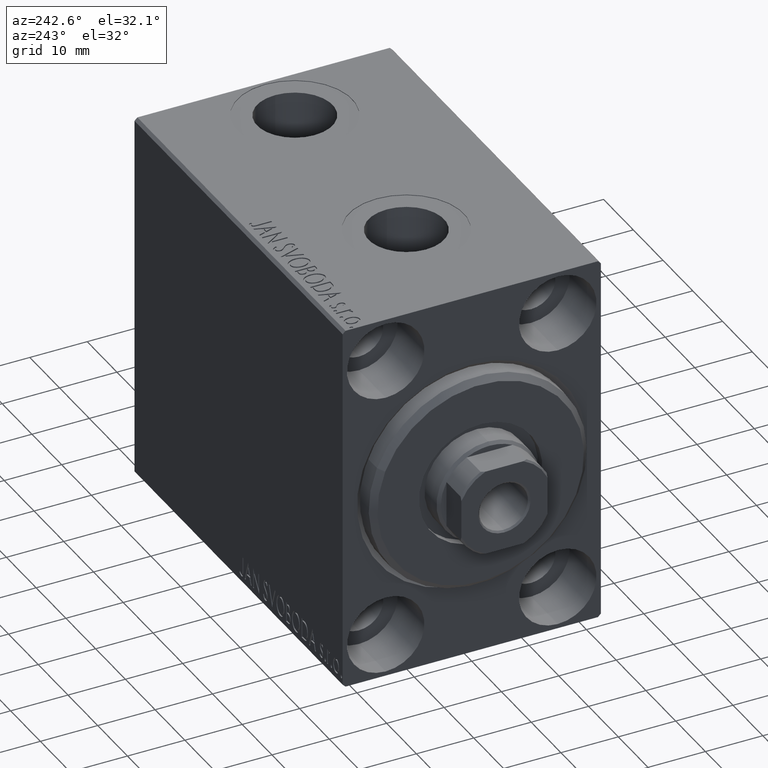
[diagram: clean part render]
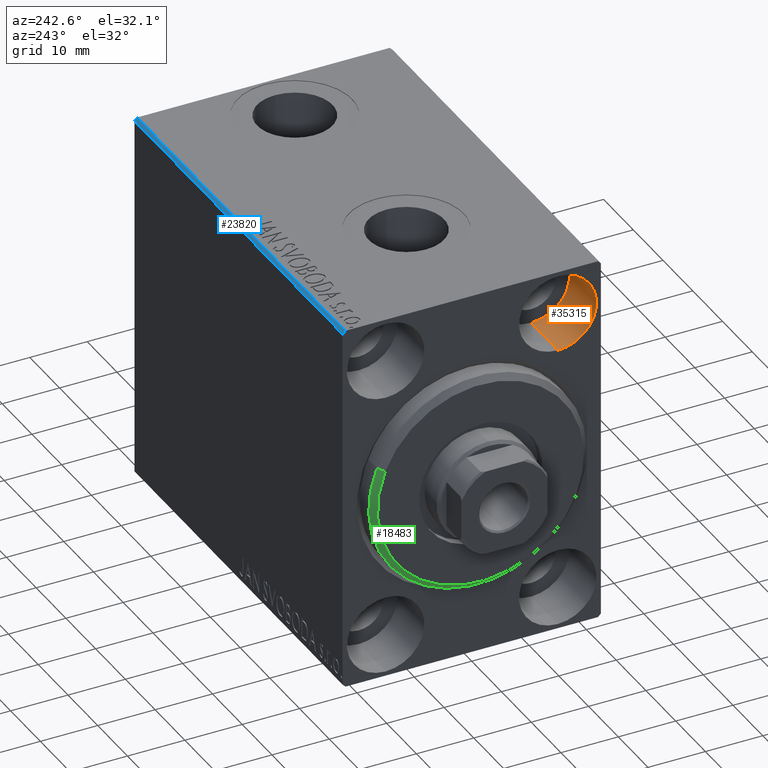
[diagram: same view with three faces highlighted in distinct colors, each labeled with its STEP entity id]
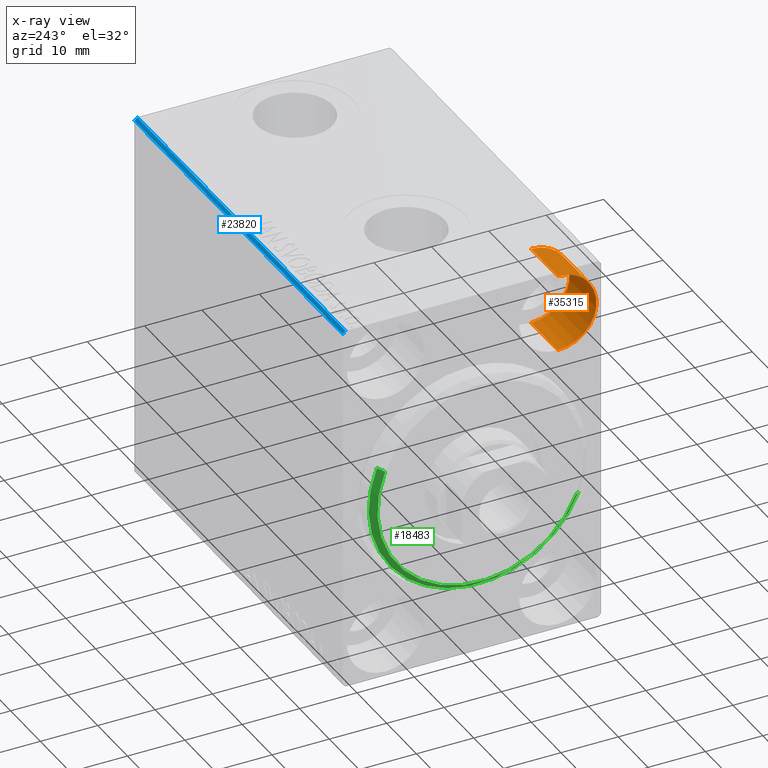
[diagram: x-ray of the same camera — body ghosted, the three highlighted faces saturated]
A machine part, auxiliary view with three faces highlighted in distinct colors.
The next image is the same camera in x-ray (body ghosted, the three faces saturated) — at least one of them is partly hidden behind the body in this view.
Their STEP definitions:

[orange] entity #35315 — the highlighted cylindrical surface (partial cylindrical patch) has radius 6.75 mm, axis along (-1, -0, -0).
#65 = DIRECTION ( 'NONE',  ( -1.000000000000000000, -0.000000000000000000, -0.000000000000000000 ) ) ;
#1546 = AXIS2_PLACEMENT_3D ( 'NONE', #15306, #43311, #36005 ) ;
#4296 = CARTESIAN_POINT ( 'NONE',  ( 0.000000000000000000, -14.99999999999999645, 31.75000000000000000 ) ) ;
#4819 = CARTESIAN_POINT ( 'NONE',  ( 9.000000000000000000, -14.99999999999999645, 31.75000000000000000 ) ) ;
#5035 = LINE ( 'NONE', #4819, #17606 ) ;
#6517 = LINE ( 'NONE', #10292, #23451 ) ;
#6533 = ORIENTED_EDGE ( 'NONE', *, *, #18035, .T. ) ;
#8702 = CARTESIAN_POINT ( 'NONE',  ( 0.000000000000000000, -14.99999999999999645, 18.25000000000000355 ) ) ;
#8822 = ORIENTED_EDGE ( 'NONE', *, *, #27505, .T. ) ;
#9036 = CIRCLE ( 'NONE', #31774, 6.749999999999999112 ) ;
#9455 = CARTESIAN_POINT ( 'NONE',  ( 9.000000000000000000, -14.99999999999999645, 31.75000000000000000 ) ) ;
#9811 = CARTESIAN_POINT ( 'NONE',  ( 9.000000000000000000, -14.99999999999999645, 25.00000000000000000 ) ) ;
#10292 = CARTESIAN_POINT ( 'NONE',  ( 9.000000000000000000, -14.99999999999999645, 18.25000000000000355 ) ) ;
#12294 = VERTEX_POINT ( 'NONE', #4296 ) ;
#15306 = CARTESIAN_POINT ( 'NONE',  ( 9.000000000000000000, -14.99999999999999645, 25.00000000000000000 ) ) ;
#16039 = VERTEX_POINT ( 'NONE', #17294 ) ;
#17257 = DIRECTION ( 'NONE',  ( 0.000000000000000000, 0.000000000000000000, 1.000000000000000000 ) ) ;
#17294 = CARTESIAN_POINT ( 'NONE',  ( 9.000000000000000000, -14.99999999999999645, 18.25000000000000355 ) ) ;
#17606 = VECTOR ( 'NONE', #28385, 1000.000000000000000 ) ;
#18035 = EDGE_CURVE ( 'NONE', #30341, #12294, #9036, .T. ) ;
#18631 = FACE_OUTER_BOUND ( 'NONE', #37357, .T. ) ;
#19606 = ORIENTED_EDGE ( 'NONE', *, *, #38079, .F. ) ;
#22503 = DIRECTION ( 'NONE',  ( 0.000000000000000000, 0.000000000000000000, 1.000000000000000000 ) ) ;
#23451 = VECTOR ( 'NONE', #65, 1000.000000000000000 ) ;
#23716 = EDGE_CURVE ( 'NONE', #33579, #12294, #5035, .T. ) ;
#25745 = CYLINDRICAL_SURFACE ( 'NONE', #1546, 6.749999999999999112 ) ;
#27505 = EDGE_CURVE ( 'NONE', #16039, #30341, #6517, .T. ) ;
#27701 = DIRECTION ( 'NONE',  ( -1.000000000000000000, 0.000000000000000000, 0.000000000000000000 ) ) ;
#28385 = DIRECTION ( 'NONE',  ( -1.000000000000000000, -0.000000000000000000, -0.000000000000000000 ) ) ;
#30341 = VERTEX_POINT ( 'NONE', #8702 ) ;
#31774 = AXIS2_PLACEMENT_3D ( 'NONE', #34181, #27701, #17257 ) ;
#33579 = VERTEX_POINT ( 'NONE', #9455 ) ;
#33596 = CIRCLE ( 'NONE', #43523, 6.749999999999999112 ) ;
#34181 = CARTESIAN_POINT ( 'NONE',  ( 0.000000000000000000, -14.99999999999999645, 25.00000000000000000 ) ) ;
#35315 = ADVANCED_FACE ( 'NONE', ( #18631 ), #25745, .F. ) ;
#36005 = DIRECTION ( 'NONE',  ( 0.000000000000000000, 0.000000000000000000, 1.000000000000000000 ) ) ;
#37357 = EDGE_LOOP ( 'NONE', ( #19606, #8822, #6533, #40126 ) ) ;
#38079 = EDGE_CURVE ( 'NONE', #16039, #33579, #33596, .T. ) ;
#39838 = DIRECTION ( 'NONE',  ( -1.000000000000000000, 0.000000000000000000, 0.000000000000000000 ) ) ;
#40126 = ORIENTED_EDGE ( 'NONE', *, *, #23716, .F. ) ;
#43311 = DIRECTION ( 'NONE',  ( -1.000000000000000000, -0.000000000000000000, -0.000000000000000000 ) ) ;
#43523 = AXIS2_PLACEMENT_3D ( 'NONE', #9811, #39838, #22503 ) ;

[blue] entity #23820 — the highlighted planar face has unit normal (-0, -0.7071, -0.7071).
#524 = ORIENTED_EDGE ( 'NONE', *, *, #33081, .F. ) ;
#1028 = VERTEX_POINT ( 'NONE', #5926 ) ;
#1396 = LINE ( 'NONE', #42103, #24364 ) ;
#2178 = LINE ( 'NONE', #32440, #22839 ) ;
#4699 = CARTESIAN_POINT ( 'NONE',  ( 0.000000000000000000, 22.49999999999999289, 31.99999999999999289 ) ) ;
#4958 = ORIENTED_EDGE ( 'NONE', *, *, #39203, .F. ) ;
#5789 = EDGE_CURVE ( 'NONE', #7722, #1028, #7553, .T. ) ;
#5926 = CARTESIAN_POINT ( 'NONE',  ( 0.000000000000000000, 21.99999999999999289, 32.50000000000000000 ) ) ;
#7553 = LINE ( 'NONE', #21122, #8750 ) ;
#7722 = VERTEX_POINT ( 'NONE', #13992 ) ;
#8750 = VECTOR ( 'NONE', #34711, 1000.000000000000000 ) ;
#9458 = PLANE ( 'NONE',  #21855 ) ;
#12801 = CARTESIAN_POINT ( 'NONE',  ( 70.00000000000000000, 21.99999999999999289, 32.50000000000000000 ) ) ;
#12877 = VECTOR ( 'NONE', #41167, 999.9999999999998863 ) ;
#12884 = ORIENTED_EDGE ( 'NONE', *, *, #35325, .F. ) ;
#13158 = LINE ( 'NONE', #26721, #12877 ) ;
#13992 = CARTESIAN_POINT ( 'NONE',  ( 70.00000000000000000, 21.99999999999999289, 32.50000000000000000 ) ) ;
#16175 = DIRECTION ( 'NONE',  ( 1.000000000000000000, 0.000000000000000000, 0.000000000000000000 ) ) ;
#17520 = EDGE_LOOP ( 'NONE', ( #524, #12884, #4958, #22527 ) ) ;
#21122 = CARTESIAN_POINT ( 'NONE',  ( 70.00000000000000000, 21.99999999999999289, 32.50000000000000000 ) ) ;
#21855 = AXIS2_PLACEMENT_3D ( 'NONE', #12801, #33502, #32620 ) ;
#22527 = ORIENTED_EDGE ( 'NONE', *, *, #5789, .F. ) ;
#22839 = VECTOR ( 'NONE', #16175, 1000.000000000000000 ) ;
#23820 = ADVANCED_FACE ( 'NONE', ( #26589 ), #9458, .F. ) ;
#24364 = VECTOR ( 'NONE', #32100, 999.9999999999998863 ) ;
#26589 = FACE_OUTER_BOUND ( 'NONE', #17520, .T. ) ;
#26721 = CARTESIAN_POINT ( 'NONE',  ( 70.00000000000000000, 27.25000000000014921, 27.24999999999976907 ) ) ;
#27344 = CARTESIAN_POINT ( 'NONE',  ( 70.00000000000000000, 22.49999999999999289, 31.99999999999999289 ) ) ;
#32100 = DIRECTION ( 'NONE',  ( -0.000000000000000000, 0.7071067811865425767, -0.7071067811865525687 ) ) ;
#32440 = CARTESIAN_POINT ( 'NONE',  ( 70.00000000000000000, 22.49999999999999289, 31.99999999999999289 ) ) ;
#32620 = DIRECTION ( 'NONE',  ( -1.000000000000000000, 0.000000000000000000, 0.000000000000000000 ) ) ;
#33081 = EDGE_CURVE ( 'NONE', #39627, #7722, #13158, .T. ) ;
#33502 = DIRECTION ( 'NONE',  ( -0.000000000000000000, -0.7071067811865524577, -0.7071067811865425767 ) ) ;
#34711 = DIRECTION ( 'NONE',  ( -1.000000000000000000, 0.000000000000000000, 0.000000000000000000 ) ) ;
#35325 = EDGE_CURVE ( 'NONE', #40138, #39627, #2178, .T. ) ;
#39203 = EDGE_CURVE ( 'NONE', #1028, #40138, #1396, .T. ) ;
#39627 = VERTEX_POINT ( 'NONE', #27344 ) ;
#40138 = VERTEX_POINT ( 'NONE', #4699 ) ;
#41167 = DIRECTION ( 'NONE',  ( -0.000000000000000000, -0.7071067811865425767, 0.7071067811865525687 ) ) ;
#42103 = CARTESIAN_POINT ( 'NONE',  ( 0.000000000000000000, 21.99999999999999289, 32.50000000000000000 ) ) ;

[green] entity #18483 — the highlighted conical surface has half-angle 45 deg.
#284 = CARTESIAN_POINT ( 'NONE',  ( 3.000000000000000000, 0.000000000000000000, 17.99999999999999645 ) ) ;
#1716 = ORIENTED_EDGE ( 'NONE', *, *, #37522, .F. ) ;
#2652 = FACE_OUTER_BOUND ( 'NONE', #13919, .T. ) ;
#3395 = CONICAL_SURFACE ( 'NONE', #7628, 17.99999999999999645, 0.7853981633974466137 ) ;
#3650 = CARTESIAN_POINT ( 'NONE',  ( 1.999999999999992228, 0.000000000000000000, 0.000000000000000000 ) ) ;
#3720 = EDGE_CURVE ( 'NONE', #15188, #18294, #42202, .T. ) ;
#4613 = DIRECTION ( 'NONE',  ( 1.000000000000000000, -0.000000000000000000, 0.000000000000000000 ) ) ;
#5983 = EDGE_CURVE ( 'NONE', #23128, #15188, #25779, .T. ) ;
#6645 = DIRECTION ( 'NONE',  ( -1.000000000000000000, 0.000000000000000000, 0.000000000000000000 ) ) ;
#7628 = AXIS2_PLACEMENT_3D ( 'NONE', #13532, #6645, #19554 ) ;
#11501 = DIRECTION ( 'NONE',  ( 0.000000000000000000, 0.000000000000000000, -1.000000000000000000 ) ) ;
#13532 = CARTESIAN_POINT ( 'NONE',  ( 3.000000000000000000, 0.000000000000000000, 0.000000000000000000 ) ) ;
#13822 = VERTEX_POINT ( 'NONE', #19743 ) ;
#13919 = EDGE_LOOP ( 'NONE', ( #1716, #18809, #18419, #17528 ) ) ;
#15188 = VERTEX_POINT ( 'NONE', #26411 ) ;
#15804 = AXIS2_PLACEMENT_3D ( 'NONE', #28401, #4613, #11501 ) ;
#15839 = VECTOR ( 'NONE', #36467, 1000.000000000000000 ) ;
#17436 = DIRECTION ( 'NONE',  ( 0.000000000000000000, 0.000000000000000000, -1.000000000000000000 ) ) ;
#17528 = ORIENTED_EDGE ( 'NONE', *, *, #5983, .F. ) ;
#18294 = VERTEX_POINT ( 'NONE', #34507 ) ;
#18419 = ORIENTED_EDGE ( 'NONE', *, *, #3720, .F. ) ;
#18483 = ADVANCED_FACE ( 'NONE', ( #2652 ), #3395, .T. ) ;
#18809 = ORIENTED_EDGE ( 'NONE', *, *, #36595, .T. ) ;
#19554 = DIRECTION ( 'NONE',  ( 0.000000000000000000, 0.000000000000000000, 1.000000000000000000 ) ) ;
#19743 = CARTESIAN_POINT ( 'NONE',  ( 3.000000000000000000, 2.265596578422603002E-15, -17.99999999999999645 ) ) ;
#23128 = VERTEX_POINT ( 'NONE', #284 ) ;
#24316 = DIRECTION ( 'NONE',  ( -1.000000000000000000, 0.000000000000000000, 0.000000000000000000 ) ) ;
#25779 = LINE ( 'NONE', #29121, #15839 ) ;
#26411 = CARTESIAN_POINT ( 'NONE',  ( 1.999999999999992228, 0.000000000000000000, 19.00000000000000000 ) ) ;
#28401 = CARTESIAN_POINT ( 'NONE',  ( 3.000000000000000000, 0.000000000000000000, 0.000000000000000000 ) ) ;
#28845 = CARTESIAN_POINT ( 'NONE',  ( 3.000000000000000000, 2.204364238465235033E-15, -17.99999999999999645 ) ) ;
#29121 = CARTESIAN_POINT ( 'NONE',  ( 3.000000000000000000, 0.000000000000000000, 17.99999999999999645 ) ) ;
#29997 = VECTOR ( 'NONE', #35529, 1000.000000000000000 ) ;
#30734 = CIRCLE ( 'NONE', #15804, 17.99999999999999645 ) ;
#32411 = LINE ( 'NONE', #28845, #29997 ) ;
#34507 = CARTESIAN_POINT ( 'NONE',  ( 1.999999999999992228, 2.326828918379970970E-15, -19.00000000000000000 ) ) ;
#35529 = DIRECTION ( 'NONE',  ( -0.7071067811865487940, 8.659560562354918067E-17, -0.7071067811865463515 ) ) ;
#36467 = DIRECTION ( 'NONE',  ( -0.7071067811865487940, 0.000000000000000000, 0.7071067811865463515 ) ) ;
#36595 = EDGE_CURVE ( 'NONE', #13822, #18294, #32411, .T. ) ;
#37522 = EDGE_CURVE ( 'NONE', #13822, #23128, #30734, .T. ) ;
#39364 = AXIS2_PLACEMENT_3D ( 'NONE', #3650, #24316, #17436 ) ;
#42202 = CIRCLE ( 'NONE', #39364, 19.00000000000000000 ) ;